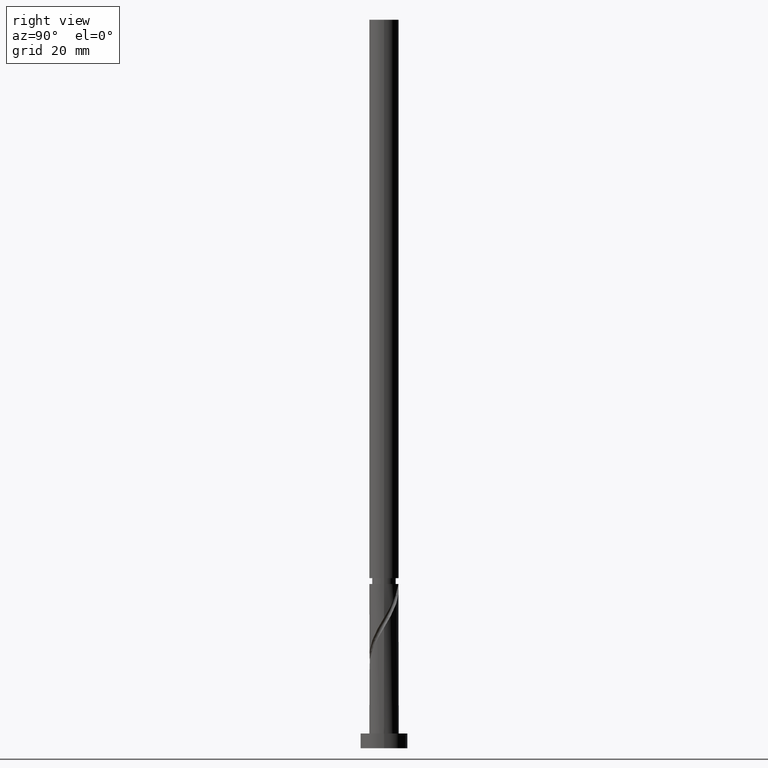
[diagram: clean part render]
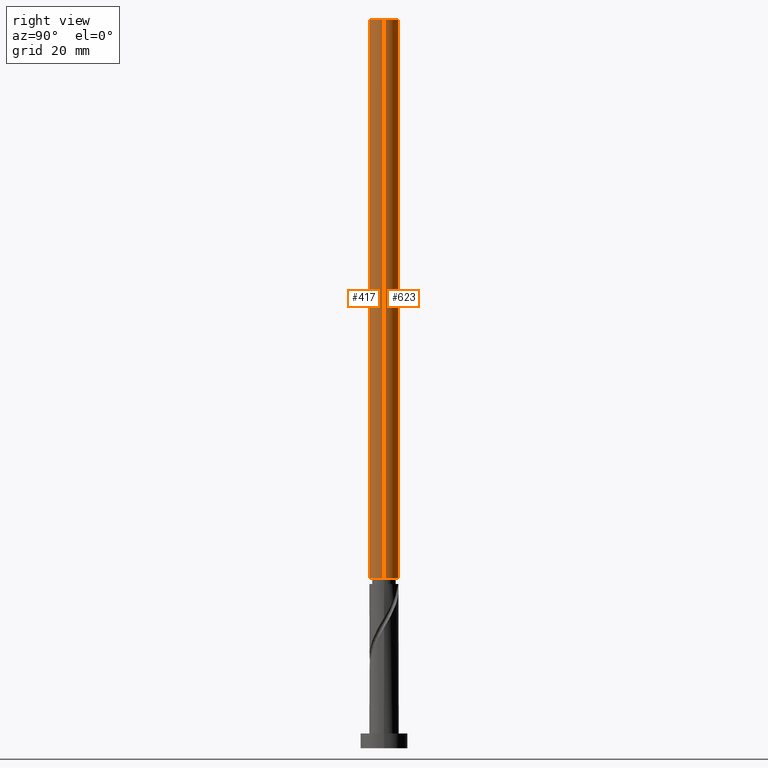
[diagram: same view with one multi-face feature highlighted, each face labeled with its STEP entity id]
A machine part, right view. The highlighted faces form ONE feature: a constant-radius fillet chain: 2 tangent blend faces with common blend radius 5 mm. The faces share edges in the B-rep.
Their STEP definitions:
[1] entity #623 (Cylinder):
#54 = DIRECTION ( 'NONE',  ( -0.000000000000000000, -0.000000000000000000, -1.000000000000000000 ) ) ;
#90 = FACE_OUTER_BOUND ( 'NONE', #171, .T. ) ;
#96 = CARTESIAN_POINT ( 'NONE',  ( -5.000000000000000000, 0.000000000000000000, 247.0000000000000000 ) ) ;
#119 = ORIENTED_EDGE ( 'NONE', *, *, #1364, .T. ) ;
#171 = EDGE_LOOP ( 'NONE', ( #1095, #119, #1223, #1258 ) ) ;
#245 = EDGE_CURVE ( 'NONE', #1163, #1545, #485, .T. ) ;
#303 = VECTOR ( 'NONE', #1111, 1000.000000000000000 ) ;
#366 = LINE ( 'NONE', #1012, #1958 ) ;
#400 = DIRECTION ( 'NONE',  ( -1.000000000000000000, 0.000000000000000000, 0.000000000000000000 ) ) ;
#485 = CIRCLE ( 'NONE', #1681, 5.000000000000000000 ) ;
#522 = AXIS2_PLACEMENT_3D ( 'NONE', #1056, #902, #1538 ) ;
#623 = ADVANCED_FACE ( 'NONE', ( #90 ), #2032, .T. ) ;
#650 = EDGE_CURVE ( 'NONE', #1062, #752, #738, .T. ) ;
#738 = CIRCLE ( 'NONE', #522, 5.000000000000006217 ) ;
#752 = VERTEX_POINT ( 'NONE', #1291 ) ;
#902 = DIRECTION ( 'NONE',  ( -0.000000000000000000, -0.000000000000000000, -1.000000000000000000 ) ) ;
#976 = CARTESIAN_POINT ( 'NONE',  ( -5.000000000000006217, 0.000000000000000000, 57.67977849146340219 ) ) ;
#1012 = CARTESIAN_POINT ( 'NONE',  ( 5.000000000000000000, 6.123233995736766282E-16, 247.0000000000000000 ) ) ;
#1056 = CARTESIAN_POINT ( 'NONE',  ( 0.000000000000000000, 0.000000000000000000, 57.67977849146340219 ) ) ;
#1062 = VERTEX_POINT ( 'NONE', #976 ) ;
#1067 = CARTESIAN_POINT ( 'NONE',  ( 0.000000000000000000, 0.000000000000000000, 247.0000000000000000 ) ) ;
#1095 = ORIENTED_EDGE ( 'NONE', *, *, #245, .F. ) ;
#1111 = DIRECTION ( 'NONE',  ( -0.000000000000000000, -0.000000000000000000, -1.000000000000000000 ) ) ;
#1163 = VERTEX_POINT ( 'NONE', #1169 ) ;
#1169 = CARTESIAN_POINT ( 'NONE',  ( 5.000000000000000000, 6.123233995736766282E-16, 247.0000000000000000 ) ) ;
#1223 = ORIENTED_EDGE ( 'NONE', *, *, #650, .F. ) ;
#1258 = ORIENTED_EDGE ( 'NONE', *, *, #1745, .F. ) ;
#1291 = CARTESIAN_POINT ( 'NONE',  ( 5.000000000000005329, 6.123233995736773185E-16, 57.67977849146340219 ) ) ;
#1364 = EDGE_CURVE ( 'NONE', #1163, #752, #366, .T. ) ;
#1405 = LINE ( 'NONE', #1743, #303 ) ;
#1537 = AXIS2_PLACEMENT_3D ( 'NONE', #1067, #1844, #400 ) ;
#1538 = DIRECTION ( 'NONE',  ( -1.000000000000000000, 0.000000000000000000, 0.000000000000000000 ) ) ;
#1545 = VERTEX_POINT ( 'NONE', #96 ) ;
#1681 = AXIS2_PLACEMENT_3D ( 'NONE', #1954, #2049, #1966 ) ;
#1743 = CARTESIAN_POINT ( 'NONE',  ( -5.000000000000000000, 0.000000000000000000, 247.0000000000000000 ) ) ;
#1745 = EDGE_CURVE ( 'NONE', #1545, #1062, #1405, .T. ) ;
#1844 = DIRECTION ( 'NONE',  ( -0.000000000000000000, -0.000000000000000000, -1.000000000000000000 ) ) ;
#1954 = CARTESIAN_POINT ( 'NONE',  ( 0.000000000000000000, 0.000000000000000000, 247.0000000000000000 ) ) ;
#1958 = VECTOR ( 'NONE', #54, 1000.000000000000000 ) ;
#1966 = DIRECTION ( 'NONE',  ( 1.000000000000000000, 0.000000000000000000, 0.000000000000000000 ) ) ;
#2032 = CYLINDRICAL_SURFACE ( 'NONE', #1537, 5.000000000000000000 ) ;
#2049 = DIRECTION ( 'NONE',  ( 0.000000000000000000, 0.000000000000000000, 1.000000000000000000 ) ) ;
[2] entity #417 (Cylinder):
#40 = ORIENTED_EDGE ( 'NONE', *, *, #1364, .F. ) ;
#47 = DIRECTION ( 'NONE',  ( -0.000000000000000000, -0.000000000000000000, -1.000000000000000000 ) ) ;
#54 = DIRECTION ( 'NONE',  ( -0.000000000000000000, -0.000000000000000000, -1.000000000000000000 ) ) ;
#96 = CARTESIAN_POINT ( 'NONE',  ( -5.000000000000000000, 0.000000000000000000, 247.0000000000000000 ) ) ;
#133 = DIRECTION ( 'NONE',  ( 0.000000000000000000, 0.000000000000000000, 1.000000000000000000 ) ) ;
#158 = EDGE_CURVE ( 'NONE', #1545, #1163, #1449, .T. ) ;
#222 = CYLINDRICAL_SURFACE ( 'NONE', #1034, 5.000000000000000000 ) ;
#226 = AXIS2_PLACEMENT_3D ( 'NONE', #1337, #133, #335 ) ;
#261 = DIRECTION ( 'NONE',  ( -0.000000000000000000, -0.000000000000000000, -1.000000000000000000 ) ) ;
#303 = VECTOR ( 'NONE', #1111, 1000.000000000000000 ) ;
#335 = DIRECTION ( 'NONE',  ( 1.000000000000000000, 0.000000000000000000, 0.000000000000000000 ) ) ;
#366 = LINE ( 'NONE', #1012, #1958 ) ;
#417 = ADVANCED_FACE ( 'NONE', ( #1161 ), #222, .T. ) ;
#426 = AXIS2_PLACEMENT_3D ( 'NONE', #1694, #261, #1519 ) ;
#477 = EDGE_CURVE ( 'NONE', #752, #1062, #1339, .T. ) ;
#657 = ORIENTED_EDGE ( 'NONE', *, *, #158, .F. ) ;
#752 = VERTEX_POINT ( 'NONE', #1291 ) ;
#941 = ORIENTED_EDGE ( 'NONE', *, *, #1745, .T. ) ;
#976 = CARTESIAN_POINT ( 'NONE',  ( -5.000000000000006217, 0.000000000000000000, 57.67977849146340219 ) ) ;
#1012 = CARTESIAN_POINT ( 'NONE',  ( 5.000000000000000000, 6.123233995736766282E-16, 247.0000000000000000 ) ) ;
#1034 = AXIS2_PLACEMENT_3D ( 'NONE', #1814, #47, #1562 ) ;
#1062 = VERTEX_POINT ( 'NONE', #976 ) ;
#1111 = DIRECTION ( 'NONE',  ( -0.000000000000000000, -0.000000000000000000, -1.000000000000000000 ) ) ;
#1161 = FACE_OUTER_BOUND ( 'NONE', #1419, .T. ) ;
#1163 = VERTEX_POINT ( 'NONE', #1169 ) ;
#1169 = CARTESIAN_POINT ( 'NONE',  ( 5.000000000000000000, 6.123233995736766282E-16, 247.0000000000000000 ) ) ;
#1291 = CARTESIAN_POINT ( 'NONE',  ( 5.000000000000005329, 6.123233995736773185E-16, 57.67977849146340219 ) ) ;
#1337 = CARTESIAN_POINT ( 'NONE',  ( 0.000000000000000000, 0.000000000000000000, 247.0000000000000000 ) ) ;
#1339 = CIRCLE ( 'NONE', #426, 5.000000000000006217 ) ;
#1364 = EDGE_CURVE ( 'NONE', #1163, #752, #366, .T. ) ;
#1405 = LINE ( 'NONE', #1743, #303 ) ;
#1419 = EDGE_LOOP ( 'NONE', ( #40, #657, #941, #1569 ) ) ;
#1449 = CIRCLE ( 'NONE', #226, 5.000000000000000000 ) ;
#1519 = DIRECTION ( 'NONE',  ( -1.000000000000000000, 0.000000000000000000, 0.000000000000000000 ) ) ;
#1545 = VERTEX_POINT ( 'NONE', #96 ) ;
#1562 = DIRECTION ( 'NONE',  ( -1.000000000000000000, 0.000000000000000000, 0.000000000000000000 ) ) ;
#1569 = ORIENTED_EDGE ( 'NONE', *, *, #477, .F. ) ;
#1694 = CARTESIAN_POINT ( 'NONE',  ( 0.000000000000000000, 0.000000000000000000, 57.67977849146340219 ) ) ;
#1743 = CARTESIAN_POINT ( 'NONE',  ( -5.000000000000000000, 0.000000000000000000, 247.0000000000000000 ) ) ;
#1745 = EDGE_CURVE ( 'NONE', #1545, #1062, #1405, .T. ) ;
#1814 = CARTESIAN_POINT ( 'NONE',  ( 0.000000000000000000, 0.000000000000000000, 247.0000000000000000 ) ) ;
#1958 = VECTOR ( 'NONE', #54, 1000.000000000000000 ) ;